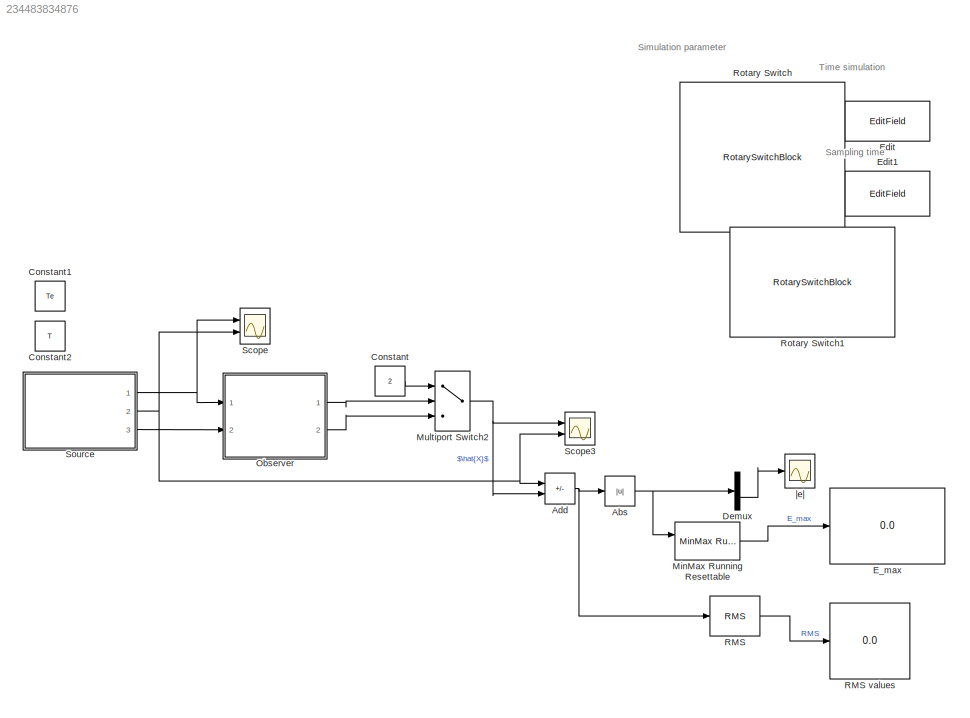
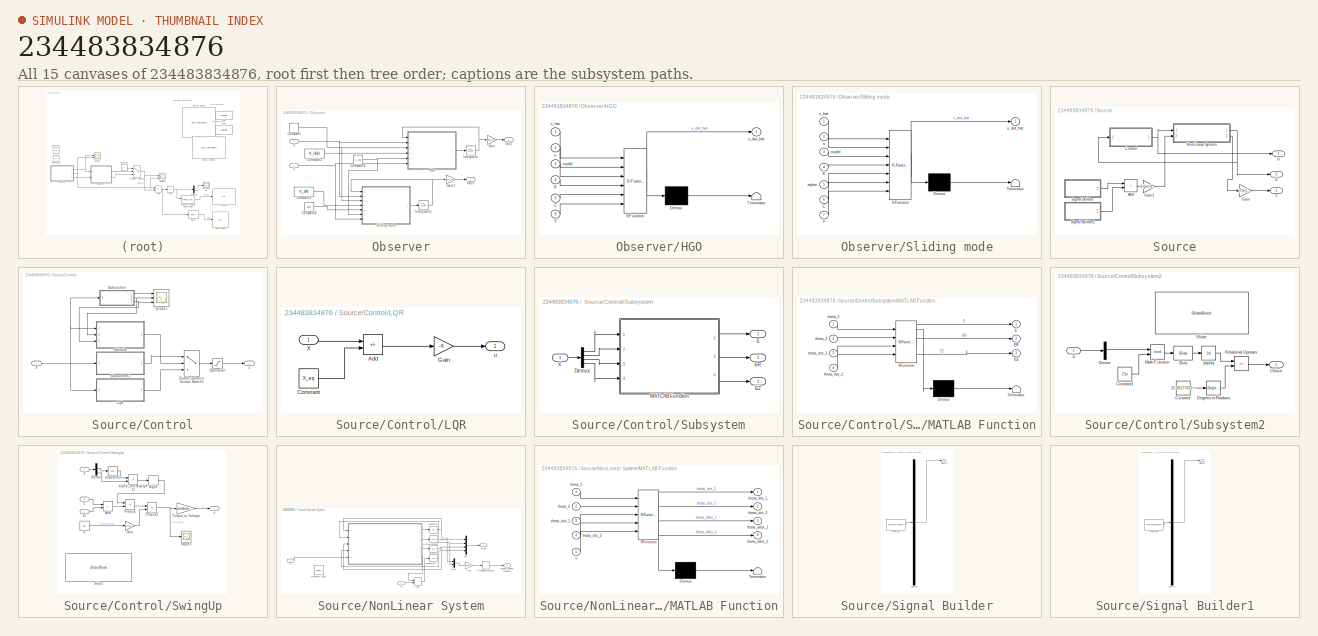
[diagram: thumbnail index - all 15 canvases of the model, root first then tree order]
MODEL slx_234483834876
KIND model
CONFIG AbsTol = auto
CONFIG EnableMultiTasking = off
CONFIG FixedStep = auto
CONFIG MaxStep = 0.001
CONFIG MinStep = auto
CONFIG RelTol = 1e-3
CONFIG SampleTimeConstraint = Unconstrained
CONFIG SolverName = ode45
CONFIG StartTime = 0.0
CONFIG StopTime = T
BLOCK [Abs] Abs
  SaturateOnIntegerOverflow = off
  ZeroCross = off
BLOCK [Sum] Add
  IconShape = rectangular
  Inputs = +-
  Ports = [2, 1]
BLOCK [Constant] Constant
  Value = 2
BLOCK [Constant] Constant1
  Value = Te
BLOCK [Constant] Constant2
  Value = T
BLOCK [Demux] Demux
  Outputs = 2
  Ports = [1, 2]
BLOCK [Display] E_max
  Decimation = 1
  Ports = [1]
BLOCK [EditField] Edit
  Alignment = Left
  ShowInitialText = on
BLOCK [EditField] Edit1
  Alignment = Left
  ShowInitialText = on
BLOCK [Reference] MinMax Running Resettable  REF=simulink/Math
Operations/MinMax
Running
Resettable
  Ports = [2, 1]
  SourceBlock = simulink/Math\nOperations/MinMax\nRunning\nResettable
  SourceProductBaseCode = SL
  SourceType = MinMax Running Resettable
BLOCK [MultiPortSwitch] Multiport Switch2
  Inputs = 2
  Ports = [3, 1]
  SaturateOnIntegerOverflow = off
BLOCK [SubSystem] Observer
  Ports = [2, 2]
  RequestExecContextInheritance = off
BLOCK [Constant] Observer/Constant
BLOCK [Constant] Observer/Constant1
  Value = K_SM
BLOCK [Constant] Observer/Constant2
  Value = K_HGO
BLOCK [Constant] Observer/Constant3
  Value = C_obs
BLOCK [Constant] Observer/Constant4
  Value = alpha
BLOCK [Gain] Observer/Gain
  Gain = Base_Obs
  Multiplication = Matrix(K*u)
BLOCK [Gain] Observer/Gain1
  Gain = Base_Obs
  Multiplication = Matrix(K*u)
BLOCK [SubSystem] Observer/HGO
  ErrorFcn = Stateflow.Translate.translate
  PermitHierarchicalResolution = ExplicitOnly
  Ports = [6, 1]
  RequestExecContextInheritance = off
  SFBlockType = MATLAB Function
  TreatAsAtomicUnit = on
BLOCK [Demux] Observer/HGO/ Demux 
  Outputs = 1
  Ports = [1, 1]
BLOCK [S-Function] Observer/HGO/ SFunction 
  EnableBusSupport = on
  FunctionName = sf_sfun
  PortCounts = [6 2]
  Ports = [6, 2]
  SFcnIsStateOwnerBlock = off
  SFunctionDeploymentMode = off
  Tag = Stateflow S-Function 2
BLOCK [Terminator] Observer/HGO/ Terminator 
BLOCK [Inport] Observer/HGO/C
  Port = 5
BLOCK [Inport] Observer/HGO/K
  Port = 4
BLOCK [Inport] Observer/HGO/Y
  Port = 6
BLOCK [Inport] Observer/HGO/model
  Port = 3
BLOCK [Inport] Observer/HGO/u
  Port = 2
BLOCK [Outport] Observer/HGO/x_dot_hat
BLOCK [Inport] Observer/HGO/x_hat
BLOCK [Integrator] Observer/Integrator
  InitialCondition = zeros(4,1)
  Ports = [1, 1]
BLOCK [Integrator] Observer/Integrator1
  InitialCondition = zeros(4,1)
  Ports = [1, 1]
BLOCK [Outport] Observer/Out2
BLOCK [Outport] Observer/Out3
  Port = 2
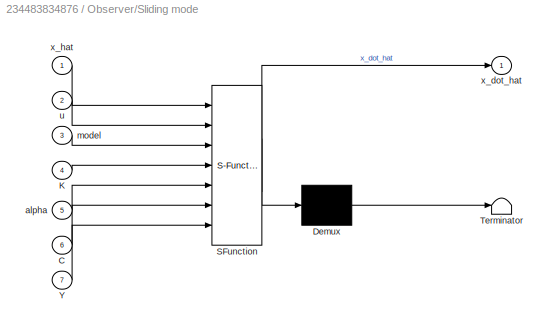
BLOCK [SubSystem] Observer/Sliding mode
  ErrorFcn = Stateflow.Translate.translate
  PermitHierarchicalResolution = ExplicitOnly
  Ports = [7, 1]
  RequestExecContextInheritance = off
  SFBlockType = MATLAB Function
  TreatAsAtomicUnit = on
BLOCK [Demux] Observer/Sliding mode/ Demux 
  Outputs = 1
  Ports = [1, 1]
BLOCK [S-Function] Observer/Sliding mode/ SFunction 
  EnableBusSupport = on
  FunctionName = sf_sfun
  PortCounts = [7 2]
  Ports = [7, 2]
  SFcnIsStateOwnerBlock = off
  SFunctionDeploymentMode = off
  Tag = Stateflow S-Function 6
BLOCK [Terminator] Observer/Sliding mode/ Terminator 
BLOCK [Inport] Observer/Sliding mode/C
  Port = 6
BLOCK [Inport] Observer/Sliding mode/K
  Port = 4
BLOCK [Inport] Observer/Sliding mode/Y
  Port = 7
BLOCK [Inport] Observer/Sliding mode/alpha
  Port = 5
BLOCK [Inport] Observer/Sliding mode/model
  Port = 3
BLOCK [Inport] Observer/Sliding mode/u
  Port = 2
BLOCK [Outport] Observer/Sliding mode/x_dot_hat
BLOCK [Inport] Observer/Sliding mode/x_hat
BLOCK [Inport] Observer/U
  Port = 2
BLOCK [Inport] Observer/Y
BLOCK [Reference] RMS  REF=powerlib_meascontrol/Measurements/RMS
  Ports = [1, 1]
  SourceBlock = powerlib_meascontrol/Measurements/RMS
  SourceProductBaseCode = PS
  SourceType = RMS
BLOCK [Display] RMS values
  Decimation = 1
  Ports = [1]
BLOCK [RotarySwitchBlock] Rotary Switch
BLOCK [RotarySwitchBlock] Rotary Switch1
BLOCK [Scope] Scope
  Floating = off
  NumInputPorts = 2
  Ports = [2]
  ScopeSpecificationString = Simulink.scopes.TimeScopeBlockCfg('CurrentConfiguration', extmgr.ConfigurationSet(extmgr.Configuration('Core','General UI',true),extmgr.Configuration('Core','Source UI',true),extmgr.Configuration('Sources','WiredSimulink',true,'SampleTime','Te'),extmgr.Configuration('Visuals','Time Domain',true,'SerializedDisplays',{struct('MinYLimReal','-13.17678','MaxYLimReal','13.25182','YLabelReal','','MinYLim...<+1552ch>
BLOCK [Scope] Scope3
  Floating = off
  NumInputPorts = 2
  Ports = [2]
  ScopeSpecificationString = Simulink.scopes.TimeScopeBlockCfg('CurrentConfiguration', extmgr.ConfigurationSet(extmgr.Configuration('Core','General UI',true,'FigureColor',[1 1 1]),extmgr.Configuration('Core','Source UI',true),extmgr.Configuration('Sources','WiredSimulink',true,'DataLoggingVariableName','ScopeData1','SampleTime','Te'),extmgr.Configuration('Visuals','Time Domain',true,'SerializedDisplays',{struct('MinYLimReal',...<+1985ch>
BLOCK [SubSystem] Source
  Ports = [0, 3]
  RequestExecContextInheritance = off
BLOCK [Sum] Source/Add
  IconShape = rectangular
  Ports = [2, 1]
BLOCK [SubSystem] Source/Control
  Ports = [1, 1]
  RequestExecContextInheritance = off
BLOCK [MultiPortSwitch] Source/Control/Enable Balance Control Switch1
  DataPortOrder = Zero-based contiguous
  InputSameDT = off
  Inputs = 2
  Ports = [3, 1]
  SaturateOnIntegerOverflow = off
  zeroidx = on
BLOCK [SubSystem] Source/Control/LQR
  Ports = [1, 1]
  RequestExecContextInheritance = off
BLOCK [Sum] Source/Control/LQR/Add
  IconShape = rectangular
  Inputs = +-
  Ports = [2, 1]
BLOCK [Constant] Source/Control/LQR/Constant
  Value = X_eq
BLOCK [Gain] Source/Control/LQR/Gain
  Gain = -K
  Multiplication = Matrix(K*u)
BLOCK [Inport] Source/Control/LQR/X
BLOCK [Outport] Source/Control/LQR/u
BLOCK [Saturate] Source/Control/Saturation
  LowerLimit = -10
  UpperLimit = 10
BLOCK [Scope] Source/Control/Scope1
  Floating = off
  NumInputPorts = 3
  Ports = [3]
  ScopeSpecificationString = Simulink.scopes.TimeScopeBlockCfg('CurrentConfiguration', extmgr.ConfigurationSet(extmgr.Configuration('Core','General UI',true),extmgr.Configuration('Core','Source UI',true),extmgr.Configuration('Sources','WiredSimulink',true,'DataLoggingVariableName','ScopeData2'),extmgr.Configuration('Visuals','Time Domain',true,'SerializedDisplays',{struct('MinYLimReal','-0.0158','MaxYLimReal','0.27845','YLabe...<+1470ch>
BLOCK [SubSystem] Source/Control/Subsystem
  Ports = [1, 3]
  RequestExecContextInheritance = off
BLOCK [Demux] Source/Control/Subsystem/Demux
  Ports = [1, 4]
BLOCK [Outport] Source/Control/Subsystem/E
BLOCK [Outport] Source/Control/Subsystem/E2
  Port = 3
BLOCK [Outport] Source/Control/Subsystem/ER
  Port = 2
BLOCK [SubSystem] Source/Control/Subsystem/MATLAB Function
  ErrorFcn = Stateflow.Translate.translate
  PermitHierarchicalResolution = ExplicitOnly
  Ports = [4, 3]
  RequestExecContextInheritance = off
  SFBlockType = MATLAB Function
  TreatAsAtomicUnit = on
BLOCK [Demux] Source/Control/Subsystem/MATLAB Function/ Demux 
  Outputs = 1
  Ports = [1, 1]
BLOCK [S-Function] Source/Control/Subsystem/MATLAB Function/ SFunction 
  EnableBusSupport = on
  FunctionName = sf_sfun
  PortCounts = [4 4]
  Ports = [4, 4]
  SFcnIsStateOwnerBlock = off
  SFunctionDeploymentMode = off
  Tag = Stateflow S-Function 1
BLOCK [Terminator] Source/Control/Subsystem/MATLAB Function/ Terminator 
BLOCK [Outport] Source/Control/Subsystem/MATLAB Function/E
BLOCK [Outport] Source/Control/Subsystem/MATLAB Function/E2
  Port = 3
BLOCK [Outport] Source/Control/Subsystem/MATLAB Function/ER
  Port = 2
BLOCK [Inport] Source/Control/Subsystem/MATLAB Function/theta_1
BLOCK [Inport] Source/Control/Subsystem/MATLAB Function/theta_2
  Port = 2
BLOCK [Inport] Source/Control/Subsystem/MATLAB Function/theta_dot_1
  Port = 3
BLOCK [Inport] Source/Control/Subsystem/MATLAB Function/theta_dot_2
  Port = 4
BLOCK [Inport] Source/Control/Subsystem/X
BLOCK [SubSystem] Source/Control/Subsystem2
  Ports = [1, 1]
  RequestExecContextInheritance = off
BLOCK [Bias] Source/Control/Subsystem2/Bias
  Bias = -pi
  SaturateOnIntegerOverflow = off
BLOCK [Outport] Source/Control/Subsystem2/Choice
BLOCK [Constant] Source/Control/Subsystem2/Constant
  Value = 25.00177053824363
BLOCK [Constant] Source/Control/Subsystem2/Constant1
  Value = 2*pi
BLOCK [Reference] Source/Control/Subsystem2/Degrees to Radians  REF=simulink_extras/Transformations/Degrees to
Radians
  Ports = [1, 1]
  SourceBlock = simulink_extras/Transformations/Degrees to\nRadians
  SourceProductBaseCode = SL
  SourceType = DegreesToRadians
BLOCK [Demux] Source/Control/Subsystem2/Demux
  Ports = [1, 4]
BLOCK [Math] Source/Control/Subsystem2/Math Function
  Operator = mod
  Ports = [2, 1]
  SignedPower = on
BLOCK [RelationalOperator] Source/Control/Subsystem2/Relational Operator
  InputSameDT = off
  Operator = <=
  OutDataTypeStr = boolean
  Ports = [2, 1]
  RndMeth = Simplest
BLOCK [SliderBlock] Source/Control/Subsystem2/Slider
  ScaleMax = 180
BLOCK [Inport] Source/Control/Subsystem2/X
BLOCK [Abs] Source/Control/Subsystem2/|alpha|
  SaturateOnIntegerOverflow = off
BLOCK [SubSystem] Source/Control/SwingUp
  Ports = [3, 1]
  RequestExecContextInheritance = off
BLOCK [Sum] Source/Control/SwingUp/Add
  IconShape = rectangular
  Inputs = +-
  Ports = [2, 1]
BLOCK [Demux] Source/Control/SwingUp/Demux
  Ports = [1, 4]
BLOCK [Inport] Source/Control/SwingUp/E
  Port = 3
BLOCK [Inport] Source/Control/SwingUp/Er
  Port = 2
BLOCK [Gain] Source/Control/SwingUp/Gain
  Gain = 1/100
BLOCK [Product] Source/Control/SwingUp/Product
  Ports = [2, 1]
BLOCK [Product] Source/Control/SwingUp/Product1
  Ports = [2, 1]
BLOCK [Scope] Source/Control/SwingUp/Scope3
  Floating = off
  NumInputPorts = 1
  Ports = [1]
  ScopeSpecificationString = Simulink.scopes.TimeScopeBlockCfg('CurrentConfiguration', extmgr.ConfigurationSet(extmgr.Configuration('Core','General UI',true),extmgr.Configuration('Core','Source UI',true),extmgr.Configuration('Sources','WiredSimulink',true,'DataLoggingVariableName','ScopeData1','SampleTime','0.01'),extmgr.Configuration('Visuals','Time Domain',true,'SerializedDisplays',{struct('MinYLimReal','-0.01983','MaxYLimR...<+1461ch>
BLOCK [Signum] Source/Control/SwingUp/Sign1
  ZeroCross = off
BLOCK [SliderBlock] Source/Control/SwingUp/Slider
BLOCK [Gain] Source/Control/SwingUp/Torque to Voltage
  Gain = pendulumParameter_model_1.Rm/pendulumParameter_model_1.kt
BLOCK [Inport] Source/Control/SwingUp/X
BLOCK [Product] Source/Control/SwingUp/alpha_dot*cos(alpha)
  Ports = [2, 1]
  RndMeth = Zero
BLOCK [Trigonometry] Source/Control/SwingUp/cos(alpha)
  Operator = cos
  Ports = [1, 1]
BLOCK [Constant] Source/Control/SwingUp/k
  Value = 100
BLOCK [Outport] Source/Control/SwingUp/u
  VectorParamsAs1DForOutWhenUnconnected = off
BLOCK [Inport] Source/Control/X
BLOCK [Outport] Source/Control/u
BLOCK [Gain] Source/Gain
  Gain = (2*pi)/2048
BLOCK [Gain] Source/Gain1
  Gain = 1/(pendulumParameter_model_1.M2*pendulumParameter_model_1.L2)
BLOCK [SubSystem] Source/NonLinear System
  Ports = [2, 2]
  RequestExecContextInheritance = off
BLOCK [Sum] Source/NonLinear System/Add
  IconShape = rectangular
  Ports = [2, 1]
BLOCK [Outport] Source/NonLinear System/Angular position measure
  Port = 2
BLOCK [Gain] Source/NonLinear System/Gain
  Gain = 2048/(2*pi)
BLOCK [Integrator] Source/NonLinear System/Integrator
  Ports = [1, 1]
BLOCK [Integrator] Source/NonLinear System/Integrator1
  Ports = [1, 1]
BLOCK [Integrator] Source/NonLinear System/Integrator2
  InitialCondition = 0.1
  Ports = [1, 1]
BLOCK [Integrator] Source/NonLinear System/Integrator3
  Ports = [1, 1]
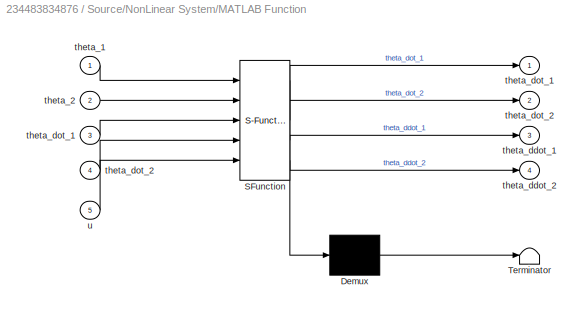
BLOCK [SubSystem] Source/NonLinear System/MATLAB Function
  ErrorFcn = Stateflow.Translate.translate
  PermitHierarchicalResolution = ExplicitOnly
  Ports = [5, 4]
  RequestExecContextInheritance = off
  SFBlockType = MATLAB Function
  TreatAsAtomicUnit = on
BLOCK [Demux] Source/NonLinear System/MATLAB Function/ Demux 
  Outputs = 1
  Ports = [1, 1]
BLOCK [S-Function] Source/NonLinear System/MATLAB Function/ SFunction 
  EnableBusSupport = on
  FunctionName = sf_sfun
  PortCounts = [5 5]
  Ports = [5, 5]
  SFcnIsStateOwnerBlock = off
  SFunctionDeploymentMode = off
  Tag = Stateflow S-Function 3
BLOCK [Terminator] Source/NonLinear System/MATLAB Function/ Terminator 
BLOCK [Inport] Source/NonLinear System/MATLAB Function/theta_1
BLOCK [Inport] Source/NonLinear System/MATLAB Function/theta_2
  Port = 2
BLOCK [Outport] Source/NonLinear System/MATLAB Function/theta_ddot_1
  Port = 3
BLOCK [Outport] Source/NonLinear System/MATLAB Function/theta_ddot_2
  Port = 4
BLOCK [Outport] Source/NonLinear System/MATLAB Function/theta_dot_1
BLOCK [Inport] Source/NonLinear System/MATLAB Function/theta_dot_1 
  Port = 3
BLOCK [Outport] Source/NonLinear System/MATLAB Function/theta_dot_2
  Port = 2
BLOCK [Inport] Source/NonLinear System/MATLAB Function/theta_dot_2 
  Port = 4
BLOCK [Inport] Source/NonLinear System/MATLAB Function/u
  Port = 5
BLOCK [Mux] Source/NonLinear System/Mux
  DisplayOption = bar
  Ports = [4, 1]
BLOCK [Mux] Source/NonLinear System/Mux1
  DisplayOption = bar
  Inputs = 2
  Ports = [2, 1]
BLOCK [Rounding] Source/NonLinear System/Rounding Function
BLOCK [TransportDelay] Source/NonLinear System/Transport Delay
  DelayTime = 0.02
  Ports = [1, 1]
BLOCK [Outport] Source/NonLinear System/X_real
BLOCK [Inport] Source/NonLinear System/u
BLOCK [Inport] Source/NonLinear System/w
  Port = 2
BLOCK [SubSystem] Source/Signal Builder
  ClipboardFcn = sigbuilder_block('clipboard');
  CloseFcn = sigbuilder_block('close');
  ContinueFcn = sigbuilder_block('continue');
  CopyFcn = sigbuilder_block('copy');
  DeleteFcn = sigbuilder_block('delete');
  LoadFcn = sigbuilder_block('load');
  MaskHideContents = on
  ModelCloseFcn = sigbuilder_block('modelClose');
  NameChangeFcn = sigbuilder_block('namechange');
  OpenFcn = sigbuilder_block('open',[886.5 189.75 550.5 358.5 ]);
  PauseFcn = sigbuilder_block('pause');
  Ports = [0, 1]
  PreSaveFcn = sigbuilder_block('preSave');
  RequestExecContextInheritance = off
  StartFcn = sigbuilder_block('start');
  StopFcn = sigbuilder_block('stop');
  Tag = STV Subsys
BLOCK [Demux] Source/Signal Builder/Demux
  DisplayOption = none
  Outputs = 1
  Ports = [1, 1]
  Tag = STV Demux
BLOCK [FromWorkspace] Source/Signal Builder/FromWs
  Tag = STV FromWs
  VariableName = tuvar
BLOCK [Outport] Source/Signal Builder/Signal 1
  Tag = STV Outport
BLOCK [SubSystem] Source/Signal Builder1
  ClipboardFcn = sigbuilder_block('clipboard');
  CloseFcn = sigbuilder_block('close');
  ContinueFcn = sigbuilder_block('continue');
  CopyFcn = sigbuilder_block('copy');
  DeleteFcn = sigbuilder_block('delete');
  LoadFcn = sigbuilder_block('load');
  MaskHideContents = on
  ModelCloseFcn = sigbuilder_block('modelClose');
  NameChangeFcn = sigbuilder_block('namechange');
  OpenFcn = sigbuilder_block('open',[843.75 185.25 550.5 358.5 ]);
  PauseFcn = sigbuilder_block('pause');
  Ports = [0, 1]
  PreSaveFcn = sigbuilder_block('preSave');
  RequestExecContextInheritance = off
  StartFcn = sigbuilder_block('start');
  StopFcn = sigbuilder_block('stop');
  Tag = STV Subsys
BLOCK [Demux] Source/Signal Builder1/Demux
  DisplayOption = none
  Outputs = 1
  Ports = [1, 1]
  Tag = STV Demux
BLOCK [FromWorkspace] Source/Signal Builder1/FromWs
  Tag = STV FromWs
  VariableName = tuvar
BLOCK [Outport] Source/Signal Builder1/Signal 1
  Tag = STV Outport
BLOCK [Outport] Source/U
  Port = 3
BLOCK [Outport] Source/X
  Port = 2
BLOCK [Outport] Source/Y
BLOCK [Scope] |e|
  Floating = off
  NumInputPorts = 1
  Ports = [1]
  ScopeSpecificationString = Simulink.scopes.TimeScopeBlockCfg('CurrentConfiguration', extmgr.ConfigurationSet(extmgr.Configuration('Core','General UI',true,'FigureColor',[1 1 1]),extmgr.Configuration('Core','Source UI',true),extmgr.Configuration('Sources','WiredSimulink',true,'DataLoggingVariableName','ScopeData1','SampleTime','Te'),extmgr.Configuration('Visuals','Time Domain',true,'SerializedDisplays',{struct('MinYLimReal',...<+2058ch>
ANNOTATION (root): Sampling time
ANNOTATION (root): Simulation parameter
ANNOTATION (root): Time simulation
NET Abs:1 -> Demux:1, MinMax Running Resettable:1
NET Add:1 -> Abs:1, RMS:1
LINE Constant:1 -> Multiport Switch2:1
LINE Demux:2 -> |e|:1
LINE MinMax Running Resettable:1 -> E_max:1
NET Multiport Switch2:1 -> Add:2, Scope3:1
LINE Observer/Constant1:1 -> Observer/Sliding mode:4
LINE Observer/Constant2:1 -> Observer/HGO:4
NET Observer/Constant3:1 -> Observer/HGO:5, Observer/Sliding mode:6
LINE Observer/Constant4:1 -> Observer/Sliding mode:5
NET Observer/Constant:1 -> Observer/HGO:3, Observer/Sliding mode:3
LINE Observer/Gain1:1 -> Observer/Out3:1
LINE Observer/Gain:1 -> Observer/Out2:1
LINE Observer/HGO:1 -> Observer/Integrator:1
NET Observer/Integrator1:1 -> Observer/Gain1:1, Observer/Sliding mode:1
NET Observer/Integrator:1 -> Observer/Gain:1, Observer/HGO:1
LINE Observer/Sliding mode:1 -> Observer/Integrator1:1
NET Observer/U:1 -> Observer/HGO:2, Observer/Sliding mode:2
NET Observer/Y:1 -> Observer/HGO:6, Observer/Sliding mode:7
LINE Observer:1 -> Multiport Switch2:2
LINE Observer:2 -> Multiport Switch2:3
LINE RMS:1 -> RMS values:1
LINE Source/Add:1 -> Source/Gain1:1
LINE Source/Control/Enable Balance Control Switch1:1 -> Source/Control/Saturation:1
LINE Source/Control/LQR/Add:1 -> Source/Control/LQR/Gain:1
LINE Source/Control/LQR/Constant:1 -> Source/Control/LQR/Add:2
LINE Source/Control/LQR/Gain:1 -> Source/Control/LQR/u:1
LINE Source/Control/LQR/X:1 -> Source/Control/LQR/Add:1
LINE Source/Control/LQR:1 -> Source/Control/Enable Balance Control Switch1:3
LINE Source/Control/Saturation:1 -> Source/Control/u:1
LINE Source/Control/Subsystem/Demux:1 -> Source/Control/Subsystem/MATLAB Function:1
LINE Source/Control/Subsystem/Demux:2 -> Source/Control/Subsystem/MATLAB Function:2
LINE Source/Control/Subsystem/Demux:3 -> Source/Control/Subsystem/MATLAB Function:3
LINE Source/Control/Subsystem/Demux:4 -> Source/Control/Subsystem/MATLAB Function:4
LINE Source/Control/Subsystem/MATLAB Function:1 -> Source/Control/Subsystem/E:1
LINE Source/Control/Subsystem/MATLAB Function:2 -> Source/Control/Subsystem/ER:1
LINE Source/Control/Subsystem/MATLAB Function:3 -> Source/Control/Subsystem/E2:1
LINE Source/Control/Subsystem/X:1 -> Source/Control/Subsystem/Demux:1
LINE Source/Control/Subsystem2/Bias:1 -> Source/Control/Subsystem2/|alpha|:1
LINE Source/Control/Subsystem2/Constant1:1 -> Source/Control/Subsystem2/Math Function:2
LINE Source/Control/Subsystem2/Constant:1 -> Source/Control/Subsystem2/Degrees to Radians:1
LINE Source/Control/Subsystem2/Degrees to Radians:1 -> Source/Control/Subsystem2/Relational Operator:2
LINE Source/Control/Subsystem2/Demux:2 -> Source/Control/Subsystem2/Math Function:1
LINE Source/Control/Subsystem2/Math Function:1 -> Source/Control/Subsystem2/Bias:1
LINE Source/Control/Subsystem2/Relational Operator:1 -> Source/Control/Subsystem2/Choice:1
LINE Source/Control/Subsystem2/X:1 -> Source/Control/Subsystem2/Demux:1
LINE Source/Control/Subsystem2/|alpha|:1 -> Source/Control/Subsystem2/Relational Operator:1
LINE Source/Control/Subsystem2:1 -> Source/Control/Enable Balance Control Switch1:1
LINE Source/Control/Subsystem:1 -> Source/Control/Scope1:1
NET Source/Control/Subsystem:2 -> Source/Control/Scope1:2, Source/Control/SwingUp:2
NET Source/Control/Subsystem:3 -> Source/Control/Scope1:3, Source/Control/SwingUp:3
LINE Source/Control/SwingUp/Add:1 -> Source/Control/SwingUp/Product:2
LINE Source/Control/SwingUp/Demux:2 -> Source/Control/SwingUp/cos(alpha):1
LINE Source/Control/SwingUp/Demux:4 -> Source/Control/SwingUp/alpha_dot*cos(alpha):2
LINE Source/Control/SwingUp/E:1 -> Source/Control/SwingUp/Add:1
LINE Source/Control/SwingUp/Er:1 -> Source/Control/SwingUp/Add:2
LINE Source/Control/SwingUp/Gain:1 -> Source/Control/SwingUp/Product1:2
NET Source/Control/SwingUp/Product1:1 -> Source/Control/SwingUp/Scope3:1, Source/Control/SwingUp/Torque to Voltage:1
LINE Source/Control/SwingUp/Product:1 -> Source/Control/SwingUp/Product1:1
LINE Source/Control/SwingUp/Sign1:1 -> Source/Control/SwingUp/Product:1
LINE Source/Control/SwingUp/Torque to Voltage:1 -> Source/Control/SwingUp/u:1
LINE Source/Control/SwingUp/X:1 -> Source/Control/SwingUp/Demux:1
LINE Source/Control/SwingUp/alpha_dot*cos(alpha):1 -> Source/Control/SwingUp/Sign1:1
LINE Source/Control/SwingUp/cos(alpha):1 -> Source/Control/SwingUp/alpha_dot*cos(alpha):1
LINE Source/Control/SwingUp/k:1 -> Source/Control/SwingUp/Gain:1
LINE Source/Control/SwingUp:1 -> Source/Control/Enable Balance Control Switch1:2
NET Source/Control/X:1 -> Source/Control/LQR:1, Source/Control/Subsystem2:1, Source/Control/Subsystem:1, Source/Control/SwingUp:1
NET Source/Control:1 -> Source/NonLinear System:1, Source/U:1
LINE Source/Gain1:1 -> Source/NonLinear System:2
LINE Source/Gain:1 -> Source/Y:1
LINE Source/NonLinear System/Add:1 -> Source/NonLinear System/Integrator1:1
LINE Source/NonLinear System/Gain:1 -> Source/NonLinear System/Rounding Function:1
NET Source/NonLinear System/Integrator1:1 -> Source/NonLinear System/MATLAB Function:4, Source/NonLinear System/Mux:4
NET Source/NonLinear System/Integrator2:1 -> Source/NonLinear System/MATLAB Function:2, Source/NonLinear System/Mux1:2, Source/NonLinear System/Mux:2
NET Source/NonLinear System/Integrator3:1 -> Source/NonLinear System/MATLAB Function:1, Source/NonLinear System/Mux1:1, Source/NonLinear System/Mux:1
NET Source/NonLinear System/Integrator:1 -> Source/NonLinear System/MATLAB Function:3, Source/NonLinear System/Mux:3
LINE Source/NonLinear System/MATLAB Function:1 -> Source/NonLinear System/Integrator3:1
LINE Source/NonLinear System/MATLAB Function:2 -> Source/NonLinear System/Integrator2:1
LINE Source/NonLinear System/MATLAB Function:3 -> Source/NonLinear System/Integrator:1
LINE Source/NonLinear System/MATLAB Function:4 -> Source/NonLinear System/Add:1
LINE Source/NonLinear System/Mux1:1 -> Source/NonLinear System/Gain:1
LINE Source/NonLinear System/Mux:1 -> Source/NonLinear System/X_real:1
LINE Source/NonLinear System/Rounding Function:1 -> Source/NonLinear System/Angular position measure:1
LINE Source/NonLinear System/u:1 -> Source/NonLinear System/MATLAB Function:5
LINE Source/NonLinear System/w:1 -> Source/NonLinear System/Add:2
NET Source/NonLinear System:1 -> Source/Control:1, Source/X:1
LINE Source/NonLinear System:2 -> Source/Gain:1
LINE Source/Signal Builder1:1 -> Source/Add:2
LINE Source/Signal Builder:1 -> Source/Add:1
NET Source:1 -> Observer:1, Scope:1
NET Source:2 -> Add:1, Scope3:2, Scope:2
LINE Source:3 -> Observer:2
note: NET lines group one-source signal fan-out (src -> all destinations, sorted); 1:1 wires keep LINE
CHART Source/Control/Subsystem/MATLAB Function states=1 transitions=1
  STATE_LABEL 'eML_blk_kernel()'
  STATE_LABEL "SCRIPT:\nfunction [E, ER, E2]  = energie(theta_1, theta_2, theta_dot_1, theta_dot_2)\n    coder.extrinsic('evalin');\n    pp = PendulumParameter();\n    pp = evalin('base','pendulumParameter_model_1'); \n    E_p1 = 0;\n    E_p2 = pp.g*pp.M2*pp.L2*(1-cos(theta_2))/2;\n    E_k1 = 1/2*pp.J1*theta_dot_1^2;\n    E_k2 = 1/2*theta_dot_1^2*(pp.M2*pp.L2^2+pp.J2*sin(theta_2)^2)+1/2*theta_dot_2^2*pp.J2 +pp.M2*pp.L1*...<+141ch>"
CHART Observer/HGO states=1 transitions=1
  STATE_LABEL 'eML_blk_kernel()'
  STATE_LABEL 'SCRIPT:\nfunction x_dot_hat = fcn(x_hat, u, model, K, C, Y)\n    coder.extrinsic(\'evalin\');\n    coder.extrinsic(\'strcat\');\n    coder.extrinsic(\'num2str\');\n    number = num2str(model);\n    pp = PendulumParameter();\n    pp = evalin(\'base\',strcat("pendulumParameter_model_", number));\n    [f1,f2,f3,f4]=PendulumNonLinearModel(pp, x_hat(1),x_hat(3),x_hat(2),x_hat(4),u);\n    x_dot_hat = [f1;f3;f2;f4]+K*(Y-...<+14ch>'
CHART Source/NonLinear System/MATLAB Function states=1 transitions=1
  STATE_LABEL 'eML_blk_kernel()'
  STATE_LABEL "SCRIPT:\nfunction [theta_dot_1,theta_dot_2,theta_ddot_1,theta_ddot_2]=PendulumNonLinearModel_internal(theta_1,theta_2,theta_dot_1,theta_dot_2,u)\n    coder.extrinsic('evalin');\n    pp = PendulumParameter();\n    pp = evalin('base','pendulumParameter_model_1');\n    [theta_dot_1,theta_dot_2,theta_ddot_1,theta_ddot_2]=PendulumNonLinearModel(pp, theta_1,theta_2,theta_dot_1,theta_dot_2,u);\nend"
CHART Observer/Sliding mode states=1 transitions=1
  STATE_LABEL 'eML_blk_kernel()'
  STATE_LABEL 'SCRIPT:\nfunction x_dot_hat = fcn(x_hat, u, model, K, alpha, C, Y)\n    coder.extrinsic(\'evalin\');\n    coder.extrinsic(\'strcat\');\n    coder.extrinsic(\'num2str\');\n    number = num2str(model);\n    pp = PendulumParameter();\n    pp = evalin(\'base\',strcat("pendulumParameter_model_", number));\n    [f1,f2,f3,f4]=PendulumNonLinearModel(pp, x_hat(1),x_hat(3),x_hat(2),x_hat(4),u);\n    e = Y-C*x_hat;\n    e_rep...<+83ch>'
CHART  states=0 transitions=0
CHART  states=0 transitions=0
CHART  states=0 transitions=0
CHART  states=0 transitions=0
